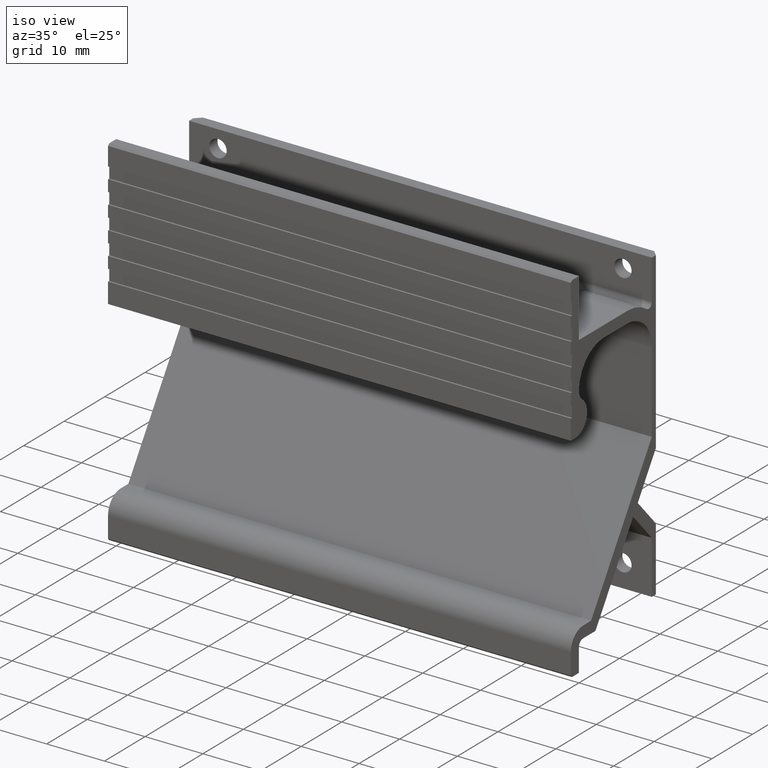
[diagram: clean part render]
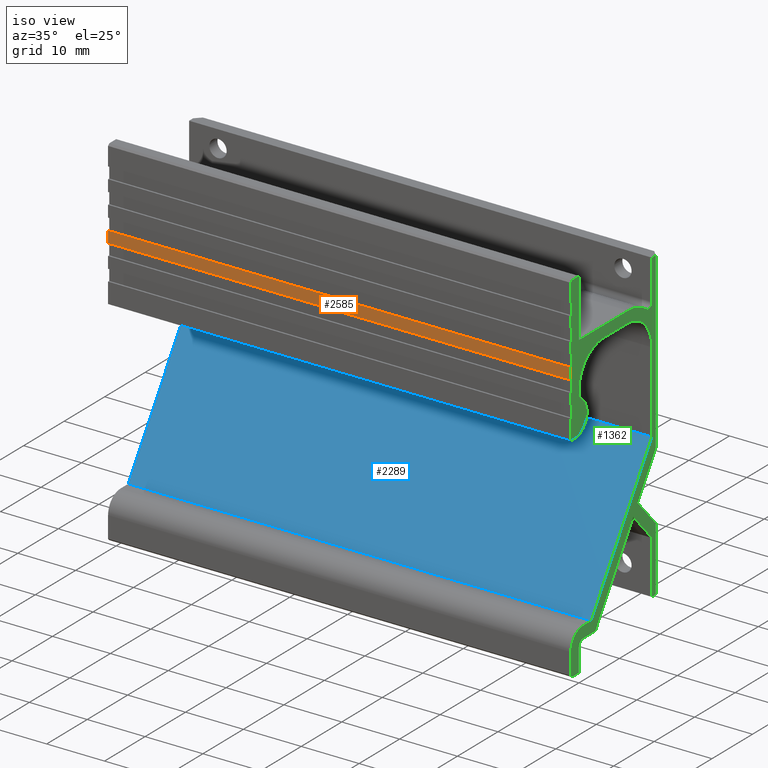
[diagram: same view with three faces highlighted in distinct colors, each labeled with its STEP entity id]
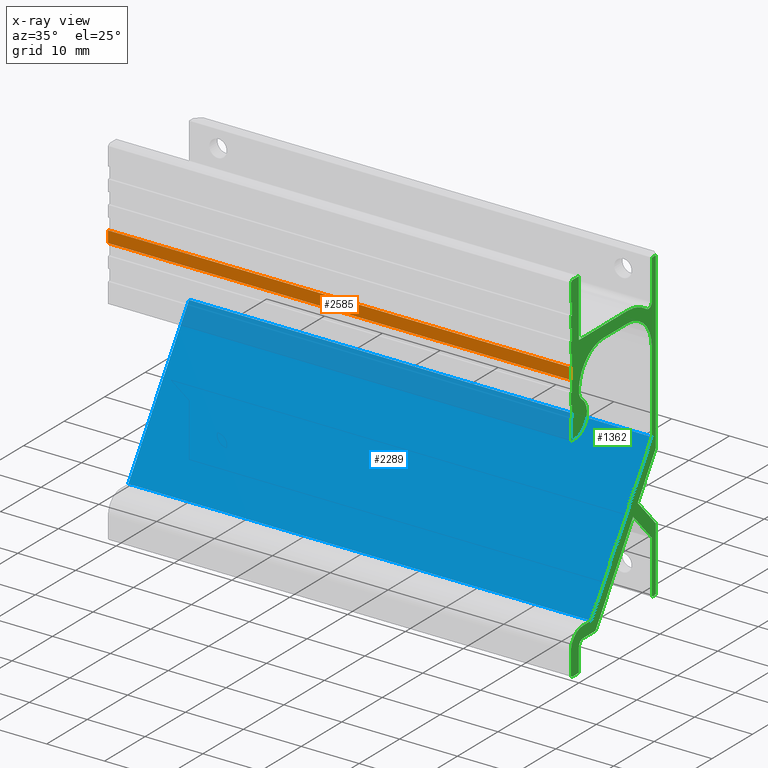
[diagram: x-ray of the same camera — body ghosted, the three highlighted faces saturated]
A machine part, iso view with three faces highlighted in distinct colors.
The next image is the same camera in x-ray (body ghosted, the three faces saturated) — at least one of them is partly hidden behind the body in this view.
Their STEP definitions:

[orange] entity #2585 — the highlighted face is a freeform B-spline surface patch.
#1109=CARTESIAN_POINT('',(40.0,-2.0,48.500000000000000));
#1110=VERTEX_POINT('',#1109);
#1116=CARTESIAN_POINT('',(40.0,-2.0,46.500000000000000));
#1117=VERTEX_POINT('',#1116);
#1118=CARTESIAN_POINT('',(40.0,-2.0,48.500000000000000));
#1119=CARTESIAN_POINT('',(40.0,-2.0,46.500000000000000));
#1120=QUASI_UNIFORM_CURVE('',1,(#1118,#1119),.UNSPECIFIED.,.F.,.U.);
#1121=EDGE_CURVE('',#1110,#1117,#1120,.T.);
#1615=CARTESIAN_POINT('',(-40.0,-2.0,46.500000000000000));
#1616=VERTEX_POINT('',#1615);
#1622=CARTESIAN_POINT('',(-40.0,-2.0,48.500000000000000));
#1623=VERTEX_POINT('',#1622);
#1624=CARTESIAN_POINT('',(-40.0,-2.0,48.500000000000000));
#1625=CARTESIAN_POINT('',(-40.0,-2.0,46.500000000000000));
#1626=QUASI_UNIFORM_CURVE('',1,(#1624,#1625),.UNSPECIFIED.,.F.,.U.);
#1627=EDGE_CURVE('',#1623,#1616,#1626,.T.);
#2560=CARTESIAN_POINT('',(-40.0,-2.0,46.500000000000000));
#2561=CARTESIAN_POINT('',(40.0,-2.0,46.500000000000000));
#2562=QUASI_UNIFORM_CURVE('',1,(#2560,#2561),.UNSPECIFIED.,.F.,.U.);
#2563=EDGE_CURVE('',#1616,#1117,#2562,.T.);
#2570=CARTESIAN_POINT('',(-43.995999844944478,-2.0,48.599899996123618));
#2571=CARTESIAN_POINT('',(-43.995999844944478,-2.0,46.400099950232210));
#2572=CARTESIAN_POINT('',(43.996001990711690,-2.0,48.599899996123618));
#2573=CARTESIAN_POINT('',(43.996001990711690,-2.0,46.400099950232217));
#2574=B_SPLINE_SURFACE_WITH_KNOTS('',1,1,((#2570,#2572),(#2571,#2573)),.UNSPECIFIED.,.F.,.F.,.U.,(2,2),(2,2),(0.0,2.199800045891408),(0.0,87.992001835656168),.UNSPECIFIED.);
#2575=ORIENTED_EDGE('',*,*,#1121,.F.);
#2576=CARTESIAN_POINT('',(-40.0,-2.0,48.500000000000000));
#2577=CARTESIAN_POINT('',(40.0,-2.0,48.500000000000000));
#2578=QUASI_UNIFORM_CURVE('',1,(#2576,#2577),.UNSPECIFIED.,.F.,.U.);
#2579=EDGE_CURVE('',#1623,#1110,#2578,.T.);
#2580=ORIENTED_EDGE('',*,*,#2579,.F.);
#2581=ORIENTED_EDGE('',*,*,#1627,.T.);
#2582=ORIENTED_EDGE('',*,*,#2563,.T.);
#2583=EDGE_LOOP('',(#2575,#2580,#2581,#2582));
#2584=FACE_OUTER_BOUND('',#2583,.T.);
#2585=ADVANCED_FACE('',(#2584),#2574,.T.);

[blue] entity #2289 — the highlighted face is a freeform B-spline surface patch.
#1255=CARTESIAN_POINT('',(40.0,18.0,30.0));
#1256=VERTEX_POINT('',#1255);
#1262=CARTESIAN_POINT('',(40.0,3.000000000000085,7.0));
#1263=VERTEX_POINT('',#1262);
#1264=CARTESIAN_POINT('',(40.0,18.0,30.0));
#1265=CARTESIAN_POINT('',(40.0,3.000000000000085,7.0));
#1266=QUASI_UNIFORM_CURVE('',1,(#1264,#1265),.UNSPECIFIED.,.F.,.U.);
#1267=EDGE_CURVE('',#1256,#1263,#1266,.T.);
#1469=CARTESIAN_POINT('',(-40.0,3.000000000000085,7.0));
#1470=VERTEX_POINT('',#1469);
#1476=CARTESIAN_POINT('',(-40.0,18.0,30.0));
#1477=VERTEX_POINT('',#1476);
#1478=CARTESIAN_POINT('',(-40.0,18.0,30.0));
#1479=CARTESIAN_POINT('',(-40.0,3.000000000000085,7.0));
#1480=QUASI_UNIFORM_CURVE('',1,(#1478,#1479),.UNSPECIFIED.,.F.,.U.);
#1481=EDGE_CURVE('',#1477,#1470,#1480,.T.);
#2264=CARTESIAN_POINT('',(-40.0,3.000000000000085,7.0));
#2265=CARTESIAN_POINT('',(40.0,3.000000000000085,7.0));
#2266=QUASI_UNIFORM_CURVE('',1,(#2264,#2265),.UNSPECIFIED.,.F.,.U.);
#2267=EDGE_CURVE('',#1470,#1263,#2266,.T.);
#2274=CARTESIAN_POINT('',(-43.995999844944478,18.749249970927089,31.148849955421539));
#2275=CARTESIAN_POINT('',(-43.995999844944478,2.250749626741623,5.851149427670408));
#2276=CARTESIAN_POINT('',(43.996001990711690,18.749249970927089,31.148849955421539));
#2277=CARTESIAN_POINT('',(43.996001990711690,2.250749626741623,5.851149427670408));
#2278=B_SPLINE_SURFACE_WITH_KNOTS('',1,1,((#2274,#2276),(#2275,#2277)),.UNSPECIFIED.,.F.,.F.,.U.,(2,2),(2,2),(0.0,30.202221203064980),(0.0,87.992001835656168),.UNSPECIFIED.);
#2279=ORIENTED_EDGE('',*,*,#1267,.F.);
#2280=CARTESIAN_POINT('',(-40.0,18.0,30.0));
#2281=CARTESIAN_POINT('',(40.0,18.0,30.0));
#2282=QUASI_UNIFORM_CURVE('',1,(#2280,#2281),.UNSPECIFIED.,.F.,.U.);
#2283=EDGE_CURVE('',#1477,#1256,#2282,.T.);
#2284=ORIENTED_EDGE('',*,*,#2283,.F.);
#2285=ORIENTED_EDGE('',*,*,#1481,.T.);
#2286=ORIENTED_EDGE('',*,*,#2267,.T.);
#2287=EDGE_LOOP('',(#2279,#2284,#2285,#2286));
#2288=FACE_OUTER_BOUND('',#2287,.T.);
#2289=ADVANCED_FACE('',(#2288),#2278,.T.);

[green] entity #1362 — the highlighted face is a freeform B-spline surface patch.
#867=CARTESIAN_POINT('',(40.0,19.0,27.872124824764800));
#868=VERTEX_POINT('',#867);
#881=CARTESIAN_POINT('',(40.0,19.0,58.0));
#882=VERTEX_POINT('',#881);
#888=CARTESIAN_POINT('',(40.0,19.0,27.872124824764800));
#889=CARTESIAN_POINT('',(40.0,19.0,58.0));
#890=QUASI_UNIFORM_CURVE('',1,(#888,#889),.UNSPECIFIED.,.F.,.U.);
#891=EDGE_CURVE('',#868,#882,#890,.T.);
#903=CARTESIAN_POINT('',(40.0,19.0,4.999999999999901));
#904=VERTEX_POINT('',#903);
#917=CARTESIAN_POINT('',(40.0,19.0,16.094526800492051));
#918=VERTEX_POINT('',#917);
#924=CARTESIAN_POINT('',(40.0,19.0,4.999999999999901));
#925=CARTESIAN_POINT('',(40.0,19.0,16.094526800492051));
#926=QUASI_UNIFORM_CURVE('',1,(#924,#925),.UNSPECIFIED.,.F.,.U.);
#927=EDGE_CURVE('',#904,#918,#926,.T.);
#932=CARTESIAN_POINT('',(40.0,-3.048949959297925,65.096899879831994));
#933=CARTESIAN_POINT('',(40.0,20.048950522561821,65.096899879831994));
#934=CARTESIAN_POINT('',(40.0,-3.048949959297925,-3.096901542801561));
#935=CARTESIAN_POINT('',(40.0,20.048950522561821,-3.096901542801561));
#936=B_SPLINE_SURFACE_WITH_KNOTS('',1,1,((#932,#934),(#933,#935)),.UNSPECIFIED.,.F.,.F.,.U.,(2,2),(2,2),(0.0,23.097900481859739),(0.0,68.193801422633555),.UNSPECIFIED.);
#937=CARTESIAN_POINT('',(40.0,18.0,4.999999999999901));
#938=VERTEX_POINT('',#937);
#939=CARTESIAN_POINT('',(40.0,18.0,4.999999999999901));
#940=CARTESIAN_POINT('',(40.0,19.0,4.999999999999901));
#941=QUASI_UNIFORM_CURVE('',1,(#939,#940),.UNSPECIFIED.,.F.,.U.);
#942=EDGE_CURVE('',#938,#904,#941,.T.);
#943=ORIENTED_EDGE('',*,*,#942,.T.);
#944=ORIENTED_EDGE('',*,*,#927,.T.);
#945=CARTESIAN_POINT('',(40.0,14.518179000000099,21.0));
#946=VERTEX_POINT('',#945);
#947=CARTESIAN_POINT('',(40.0,19.0,16.094526800492051));
#948=CARTESIAN_POINT('',(40.0,14.518179000000099,21.0));
#949=QUASI_UNIFORM_CURVE('',1,(#947,#948),.UNSPECIFIED.,.F.,.U.);
#950=EDGE_CURVE('',#918,#946,#949,.T.);
#951=ORIENTED_EDGE('',*,*,#950,.T.);
#952=CARTESIAN_POINT('',(40.0,14.518179000000099,21.0));
#953=CARTESIAN_POINT('',(40.0,19.0,27.872124824764800));
#954=QUASI_UNIFORM_CURVE('',1,(#952,#953),.UNSPECIFIED.,.F.,.U.);
#955=EDGE_CURVE('',#946,#868,#954,.T.);
#956=ORIENTED_EDGE('',*,*,#955,.T.);
#957=ORIENTED_EDGE('',*,*,#891,.T.);
#958=CARTESIAN_POINT('',(40.0,18.0,58.0));
#959=VERTEX_POINT('',#958);
#960=CARTESIAN_POINT('',(40.0,19.0,58.0));
#961=CARTESIAN_POINT('',(40.0,18.0,58.0));
#962=QUASI_UNIFORM_CURVE('',1,(#960,#961),.UNSPECIFIED.,.F.,.U.);
#963=EDGE_CURVE('',#882,#959,#962,.T.);
#964=ORIENTED_EDGE('',*,*,#963,.T.);
#965=CARTESIAN_POINT('',(40.0,18.0,51.099294999999898));
#966=VERTEX_POINT('',#965);
#967=CARTESIAN_POINT('',(40.0,18.0,58.0));
#968=CARTESIAN_POINT('',(40.0,18.0,51.099294999999898));
#969=QUASI_UNIFORM_CURVE('',1,(#967,#968),.UNSPECIFIED.,.F.,.U.);
#970=EDGE_CURVE('',#959,#966,#969,.T.);
#971=ORIENTED_EDGE('',*,*,#970,.T.);
#972=CARTESIAN_POINT('',(40.0,16.727272722990399,50.453904481343798));
#973=VERTEX_POINT('',#972);
#974=CARTESIAN_POINT('',(40.0,16.727272722990438,50.453904481343848));
#975=CARTESIAN_POINT('',(40.0,17.123627222252377,50.163587878061925));
#976=CARTESIAN_POINT('',(40.0,17.561813611126190,50.385788930786873));
#977=CARTESIAN_POINT('',(40.0,18.000000000000004,50.607989983511835));
#978=CARTESIAN_POINT('',(40.0,18.0,51.099294999999898));
#986=(BOUNDED_CURVE()B_SPLINE_CURVE(2,(#974,#975,#976,#977,#978),.UNSPECIFIED.,.F.,.U.)B_SPLINE_CURVE_WITH_KNOTS((3,2,3),(0.0,0.500000000000000,1.0),.UNSPECIFIED.)CURVE()GEOMETRIC_REPRESENTATION_ITEM()RATIONAL_B_SPLINE_CURVE((1.0,0.852134676535270,1.0,0.852134676535270,1.0))REPRESENTATION_ITEM(''));
#987=EDGE_CURVE('',#973,#966,#986,.T.);
#988=ORIENTED_EDGE('',*,*,#987,.F.);
#989=CARTESIAN_POINT('',(40.0,12.0,52.0));
#990=VERTEX_POINT('',#989);
#991=CARTESIAN_POINT('',(40.0,16.727272722990399,50.453904481343798));
#992=CARTESIAN_POINT('',(39.999999999999993,14.616468331732822,52.0));
#993=CARTESIAN_POINT('',(40.0,12.0,52.0));
#1001=(BOUNDED_CURVE()B_SPLINE_CURVE(2,(#991,#992,#993),.UNSPECIFIED.,.F.,.U.)CURVE()GEOMETRIC_REPRESENTATION_ITEM()QUASI_UNIFORM_CURVE()RATIONAL_B_SPLINE_CURVE((1.0,0.950457290031124,1.0))REPRESENTATION_ITEM(''));
#1002=EDGE_CURVE('',#973,#990,#1001,.T.);
#1003=ORIENTED_EDGE('',*,*,#1002,.T.);
#1004=CARTESIAN_POINT('',(40.0,0.0,52.0));
#1005=VERTEX_POINT('',#1004);
#1006=CARTESIAN_POINT('',(40.0,12.0,52.0));
#1007=CARTESIAN_POINT('',(40.0,0.0,52.0));
#1008=QUASI_UNIFORM_CURVE('',1,(#1006,#1007),.UNSPECIFIED.,.F.,.U.);
#1009=EDGE_CURVE('',#990,#1005,#1008,.T.);
#1010=ORIENTED_EDGE('',*,*,#1009,.T.);
#1011=CARTESIAN_POINT('',(40.0,0.0,62.0));
#1012=VERTEX_POINT('',#1011);
#1013=CARTESIAN_POINT('',(40.0,0.0,52.0));
#1014=CARTESIAN_POINT('',(40.0,0.0,62.0));
#1015=QUASI_UNIFORM_CURVE('',1,(#1013,#1014),.UNSPECIFIED.,.F.,.U.);
#1016=EDGE_CURVE('',#1005,#1012,#1015,.T.);
#1017=ORIENTED_EDGE('',*,*,#1016,.T.);
#1018=CARTESIAN_POINT('',(40.0,-1.699999999999905,62.0));
#1019=VERTEX_POINT('',#1018);
#1020=CARTESIAN_POINT('',(40.0,0.0,62.0));
#1021=CARTESIAN_POINT('',(40.0,-1.699999999999905,62.0));
#1022=QUASI_UNIFORM_CURVE('',1,(#1020,#1021),.UNSPECIFIED.,.F.,.U.);
#1023=EDGE_CURVE('',#1012,#1019,#1022,.T.);
#1024=ORIENTED_EDGE('',*,*,#1023,.T.);
#1025=CARTESIAN_POINT('',(40.0,-2.0,61.700000000000003));
#1026=VERTEX_POINT('',#1025);
#1027=CARTESIAN_POINT('',(40.0,-1.699999999999905,62.0));
#1028=CARTESIAN_POINT('',(40.0,-2.0,61.700000000000003));
#1029=QUASI_UNIFORM_CURVE('',1,(#1027,#1028),.UNSPECIFIED.,.F.,.U.);
#1030=EDGE_CURVE('',#1019,#1026,#1029,.T.);
#1031=ORIENTED_EDGE('',*,*,#1030,.T.);
#1032=CARTESIAN_POINT('',(40.0,-2.0,58.500000000000000));
#1033=VERTEX_POINT('',#1032);
#1034=CARTESIAN_POINT('',(40.0,-2.0,61.700000000000003));
#1035=CARTESIAN_POINT('',(40.0,-2.0,58.500000000000000));
#1036=QUASI_UNIFORM_CURVE('',1,(#1034,#1035),.UNSPECIFIED.,.F.,.U.);
#1037=EDGE_CURVE('',#1026,#1033,#1036,.T.);
#1038=ORIENTED_EDGE('',*,*,#1037,.T.);
#1039=CARTESIAN_POINT('',(40.0,-1.699999999999905,58.500000000000000));
#1040=VERTEX_POINT('',#1039);
#1041=CARTESIAN_POINT('',(40.0,-2.0,58.500000000000000));
#1042=CARTESIAN_POINT('',(40.0,-1.699999999999905,58.500000000000000));
#1043=QUASI_UNIFORM_CURVE('',1,(#1041,#1042),.UNSPECIFIED.,.F.,.U.);
#1044=EDGE_CURVE('',#1033,#1040,#1043,.T.);
#1045=ORIENTED_EDGE('',*,*,#1044,.T.);
#1046=CARTESIAN_POINT('',(40.0,-1.699999999999905,56.500000000000000));
#1047=VERTEX_POINT('',#1046);
#1048=CARTESIAN_POINT('',(40.0,-1.699999999999905,58.500000000000000));
#1049=CARTESIAN_POINT('',(40.0,-1.699999999999905,56.500000000000000));
#1050=QUASI_UNIFORM_CURVE('',1,(#1048,#1049),.UNSPECIFIED.,.F.,.U.);
#1051=EDGE_CURVE('',#1040,#1047,#1050,.T.);
#1052=ORIENTED_EDGE('',*,*,#1051,.T.);
#1053=CARTESIAN_POINT('',(40.0,-2.0,56.500000000000000));
#1054=VERTEX_POINT('',#1053);
#1055=CARTESIAN_POINT('',(40.0,-1.699999999999905,56.500000000000000));
#1056=CARTESIAN_POINT('',(40.0,-2.0,56.500000000000000));
#1057=QUASI_UNIFORM_CURVE('',1,(#1055,#1056),.UNSPECIFIED.,.F.,.U.);
#1058=EDGE_CURVE('',#1047,#1054,#1057,.T.);
#1059=ORIENTED_EDGE('',*,*,#1058,.T.);
#1060=CARTESIAN_POINT('',(40.0,-2.0,54.500000000000000));
#1061=VERTEX_POINT('',#1060);
#1062=CARTESIAN_POINT('',(40.0,-2.0,56.500000000000000));
#1063=CARTESIAN_POINT('',(40.0,-2.0,54.500000000000000));
#1064=QUASI_UNIFORM_CURVE('',1,(#1062,#1063),.UNSPECIFIED.,.F.,.U.);
#1065=EDGE_CURVE('',#1054,#1061,#1064,.T.);
#1066=ORIENTED_EDGE('',*,*,#1065,.T.);
#1067=CARTESIAN_POINT('',(40.0,-1.699999999999905,54.500000000000000));
#1068=VERTEX_POINT('',#1067);
#1069=CARTESIAN_POINT('',(40.0,-2.0,54.500000000000000));
#1070=CARTESIAN_POINT('',(40.0,-1.699999999999905,54.500000000000000));
#1071=QUASI_UNIFORM_CURVE('',1,(#1069,#1070),.UNSPECIFIED.,.F.,.U.);
#1072=EDGE_CURVE('',#1061,#1068,#1071,.T.);
#1073=ORIENTED_EDGE('',*,*,#1072,.T.);
#1074=CARTESIAN_POINT('',(40.0,-1.699999999999905,52.500000000000000));
#1075=VERTEX_POINT('',#1074);
#1076=CARTESIAN_POINT('',(40.0,-1.699999999999905,54.500000000000000));
#1077=CARTESIAN_POINT('',(40.0,-1.699999999999905,52.500000000000000));
#1078=QUASI_UNIFORM_CURVE('',1,(#1076,#1077),.UNSPECIFIED.,.F.,.U.);
#1079=EDGE_CURVE('',#1068,#1075,#1078,.T.);
#1080=ORIENTED_EDGE('',*,*,#1079,.T.);
#1081=CARTESIAN_POINT('',(40.0,-2.0,52.500000000000000));
#1082=VERTEX_POINT('',#1081);
#1083=CARTESIAN_POINT('',(40.0,-1.699999999999905,52.500000000000000));
#1084=CARTESIAN_POINT('',(40.0,-2.0,52.500000000000000));
#1085=QUASI_UNIFORM_CURVE('',1,(#1083,#1084),.UNSPECIFIED.,.F.,.U.);
#1086=EDGE_CURVE('',#1075,#1082,#1085,.T.);
#1087=ORIENTED_EDGE('',*,*,#1086,.T.);
#1088=CARTESIAN_POINT('',(40.0,-2.0,50.500000000000000));
#1089=VERTEX_POINT('',#1088);
#1090=CARTESIAN_POINT('',(40.0,-2.0,52.500000000000000));
#1091=CARTESIAN_POINT('',(40.0,-2.0,50.500000000000000));
#1092=QUASI_UNIFORM_CURVE('',1,(#1090,#1091),.UNSPECIFIED.,.F.,.U.);
#1093=EDGE_CURVE('',#1082,#1089,#1092,.T.);
#1094=ORIENTED_EDGE('',*,*,#1093,.T.);
#1095=CARTESIAN_POINT('',(40.0,-1.699999999999905,50.500000000000000));
#1096=VERTEX_POINT('',#1095);
#1097=CARTESIAN_POINT('',(40.0,-2.0,50.500000000000000));
#1098=CARTESIAN_POINT('',(40.0,-1.699999999999905,50.500000000000000));
#1099=QUASI_UNIFORM_CURVE('',1,(#1097,#1098),.UNSPECIFIED.,.F.,.U.);
#1100=EDGE_CURVE('',#1089,#1096,#1099,.T.);
#1101=ORIENTED_EDGE('',*,*,#1100,.T.);
#1102=CARTESIAN_POINT('',(40.0,-1.699999999999905,48.500000000000000));
#1103=VERTEX_POINT('',#1102);
#1104=CARTESIAN_POINT('',(40.0,-1.699999999999905,50.500000000000000));
#1105=CARTESIAN_POINT('',(40.0,-1.699999999999905,48.500000000000000));
#1106=QUASI_UNIFORM_CURVE('',1,(#1104,#1105),.UNSPECIFIED.,.F.,.U.);
#1107=EDGE_CURVE('',#1096,#1103,#1106,.T.);
#1108=ORIENTED_EDGE('',*,*,#1107,.T.);
#1109=CARTESIAN_POINT('',(40.0,-2.0,48.500000000000000));
#1110=VERTEX_POINT('',#1109);
#1111=CARTESIAN_POINT('',(40.0,-1.699999999999905,48.500000000000000));
#1112=CARTESIAN_POINT('',(40.0,-2.0,48.500000000000000));
#1113=QUASI_UNIFORM_CURVE('',1,(#1111,#1112),.UNSPECIFIED.,.F.,.U.);
#1114=EDGE_CURVE('',#1103,#1110,#1113,.T.);
#1115=ORIENTED_EDGE('',*,*,#1114,.T.);
#1116=CARTESIAN_POINT('',(40.0,-2.0,46.500000000000000));
#1117=VERTEX_POINT('',#1116);
#1118=CARTESIAN_POINT('',(40.0,-2.0,48.500000000000000));
#1119=CARTESIAN_POINT('',(40.0,-2.0,46.500000000000000));
#1120=QUASI_UNIFORM_CURVE('',1,(#1118,#1119),.UNSPECIFIED.,.F.,.U.);
#1121=EDGE_CURVE('',#1110,#1117,#1120,.T.);
#1122=ORIENTED_EDGE('',*,*,#1121,.T.);
#1123=CARTESIAN_POINT('',(40.0,-1.699999999999905,46.500000000000000));
#1124=VERTEX_POINT('',#1123);
#1125=CARTESIAN_POINT('',(40.0,-2.0,46.500000000000000));
#1126=CARTESIAN_POINT('',(40.0,-1.699999999999905,46.500000000000000));
#1127=QUASI_UNIFORM_CURVE('',1,(#1125,#1126),.UNSPECIFIED.,.F.,.U.);
#1128=EDGE_CURVE('',#1117,#1124,#1127,.T.);
#1129=ORIENTED_EDGE('',*,*,#1128,.T.);
#1130=CARTESIAN_POINT('',(40.0,-1.699999999999905,44.500000000000000));
#1131=VERTEX_POINT('',#1130);
#1132=CARTESIAN_POINT('',(40.0,-1.699999999999905,46.500000000000000));
#1133=CARTESIAN_POINT('',(40.0,-1.699999999999905,44.500000000000000));
#1134=QUASI_UNIFORM_CURVE('',1,(#1132,#1133),.UNSPECIFIED.,.F.,.U.);
#1135=EDGE_CURVE('',#1124,#1131,#1134,.T.);
#1136=ORIENTED_EDGE('',*,*,#1135,.T.);
#1137=CARTESIAN_POINT('',(40.0,-2.0,44.500000000000000));
#1138=VERTEX_POINT('',#1137);
#1139=CARTESIAN_POINT('',(40.0,-1.699999999999905,44.500000000000000));
#1140=CARTESIAN_POINT('',(40.0,-2.0,44.500000000000000));
#1141=QUASI_UNIFORM_CURVE('',1,(#1139,#1140),.UNSPECIFIED.,.F.,.U.);
#1142=EDGE_CURVE('',#1131,#1138,#1141,.T.);
#1143=ORIENTED_EDGE('',*,*,#1142,.T.);
#1144=CARTESIAN_POINT('',(40.0,-2.0,42.500000000000000));
#1145=VERTEX_POINT('',#1144);
#1146=CARTESIAN_POINT('',(40.0,-2.0,44.500000000000000));
#1147=CARTESIAN_POINT('',(40.0,-2.0,42.500000000000000));
#1148=QUASI_UNIFORM_CURVE('',1,(#1146,#1147),.UNSPECIFIED.,.F.,.U.);
#1149=EDGE_CURVE('',#1138,#1145,#1148,.T.);
#1150=ORIENTED_EDGE('',*,*,#1149,.T.);
#1151=CARTESIAN_POINT('',(40.0,-1.699999999999905,42.500000000000000));
#1152=VERTEX_POINT('',#1151);
#1153=CARTESIAN_POINT('',(40.0,-2.0,42.500000000000000));
#1154=CARTESIAN_POINT('',(40.0,-1.699999999999905,42.500000000000000));
#1155=QUASI_UNIFORM_CURVE('',1,(#1153,#1154),.UNSPECIFIED.,.F.,.U.);
#1156=EDGE_CURVE('',#1145,#1152,#1155,.T.);
#1157=ORIENTED_EDGE('',*,*,#1156,.T.);
#1158=CARTESIAN_POINT('',(40.0,-1.699999999999905,40.500000000000000));
#1159=VERTEX_POINT('',#1158);
#1160=CARTESIAN_POINT('',(40.0,-1.699999999999905,42.500000000000000));
#1161=CARTESIAN_POINT('',(40.0,-1.699999999999905,40.500000000000000));
#1162=QUASI_UNIFORM_CURVE('',1,(#1160,#1161),.UNSPECIFIED.,.F.,.U.);
#1163=EDGE_CURVE('',#1152,#1159,#1162,.T.);
#1164=ORIENTED_EDGE('',*,*,#1163,.T.);
#1165=CARTESIAN_POINT('',(40.0,-2.0,40.500000000000000));
#1166=VERTEX_POINT('',#1165);
#1167=CARTESIAN_POINT('',(40.0,-1.699999999999905,40.500000000000000));
#1168=CARTESIAN_POINT('',(40.0,-2.0,40.500000000000000));
#1169=QUASI_UNIFORM_CURVE('',1,(#1167,#1168),.UNSPECIFIED.,.F.,.U.);
#1170=EDGE_CURVE('',#1159,#1166,#1169,.T.);
#1171=ORIENTED_EDGE('',*,*,#1170,.T.);
#1172=CARTESIAN_POINT('',(40.0,-2.0,37.0));
#1173=VERTEX_POINT('',#1172);
#1174=CARTESIAN_POINT('',(40.0,-2.0,40.500000000000000));
#1175=CARTESIAN_POINT('',(40.0,-2.0,37.0));
#1176=QUASI_UNIFORM_CURVE('',1,(#1174,#1175),.UNSPECIFIED.,.F.,.U.);
#1177=EDGE_CURVE('',#1166,#1173,#1176,.T.);
#1178=ORIENTED_EDGE('',*,*,#1177,.T.);
#1179=CARTESIAN_POINT('',(40.0,-1.0,37.0));
#1180=VERTEX_POINT('',#1179);
#1181=CARTESIAN_POINT('',(40.0,-2.0,37.0));
#1182=CARTESIAN_POINT('',(40.0,-1.0,37.0));
#1183=QUASI_UNIFORM_CURVE('',1,(#1181,#1182),.UNSPECIFIED.,.F.,.U.);
#1184=EDGE_CURVE('',#1173,#1180,#1183,.T.);
#1185=ORIENTED_EDGE('',*,*,#1184,.T.);
#1186=CARTESIAN_POINT('',(40.0,0.800000014834853,42.399999988873851));
#1187=VERTEX_POINT('',#1186);
#1188=CARTESIAN_POINT('',(40.0,-1.0,37.0));
#1189=CARTESIAN_POINT('',(40.0,1.162277653124168,37.000000000000007));
#1190=CARTESIAN_POINT('',(40.0,1.846049891219545,39.051316693153503));
#1191=CARTESIAN_POINT('',(40.0,2.529822129314922,41.102633386306991));
#1192=CARTESIAN_POINT('',(40.0,0.800000014834858,42.399999988873859));
#1200=(BOUNDED_CURVE()B_SPLINE_CURVE(2,(#1188,#1189,#1190,#1191,#1192),.UNSPECIFIED.,.F.,.U.)B_SPLINE_CURVE_WITH_KNOTS((3,2,3),(0.0,0.500000000000000,1.0),.UNSPECIFIED.)CURVE()GEOMETRIC_REPRESENTATION_ITEM()RATIONAL_B_SPLINE_CURVE((1.0,0.811242186079112,1.0,0.811242186079112,1.0))REPRESENTATION_ITEM(''));
#1201=EDGE_CURVE('',#1180,#1187,#1200,.T.);
#1202=ORIENTED_EDGE('',*,*,#1201,.T.);
#1203=CARTESIAN_POINT('',(40.0,-4.440892E-016,44.0));
#1204=VERTEX_POINT('',#1203);
#1205=CARTESIAN_POINT('',(40.0,0.0,44.0));
#1206=CARTESIAN_POINT('',(40.0,0.0,42.999999988410266));
#1207=CARTESIAN_POINT('',(40.0,0.800000014834856,42.399999988873859));
#1215=(BOUNDED_CURVE()B_SPLINE_CURVE(2,(#1205,#1206,#1207),.UNSPECIFIED.,.F.,.U.)CURVE()GEOMETRIC_REPRESENTATION_ITEM()QUASI_UNIFORM_CURVE()RATIONAL_B_SPLINE_CURVE((1.0,0.894427188926682,1.0))REPRESENTATION_ITEM(''));
#1216=EDGE_CURVE('',#1204,#1187,#1215,.T.);
#1217=ORIENTED_EDGE('',*,*,#1216,.F.);
#1218=CARTESIAN_POINT('',(40.0,6.000000000000091,50.0));
#1219=VERTEX_POINT('',#1218);
#1220=CARTESIAN_POINT('',(40.0,6.000000000000091,49.999999999999993));
#1221=CARTESIAN_POINT('',(39.999999999999993,9.020562E-014,49.999999999999986));
#1222=CARTESIAN_POINT('',(40.0,9.020562E-014,44.0));
#1230=(BOUNDED_CURVE()B_SPLINE_CURVE(2,(#1220,#1221,#1222),.UNSPECIFIED.,.F.,.U.)CURVE()GEOMETRIC_REPRESENTATION_ITEM()QUASI_UNIFORM_CURVE()RATIONAL_B_SPLINE_CURVE((1.0,0.707106781186548,1.0))REPRESENTATION_ITEM(''));
#1231=EDGE_CURVE('',#1219,#1204,#1230,.T.);
#1232=ORIENTED_EDGE('',*,*,#1231,.F.);
#1233=CARTESIAN_POINT('',(40.0,12.0,50.0));
#1234=VERTEX_POINT('',#1233);
#1235=CARTESIAN_POINT('',(40.0,6.000000000000091,50.0));
#1236=CARTESIAN_POINT('',(40.0,12.0,50.0));
#1237=QUASI_UNIFORM_CURVE('',1,(#1235,#1236),.UNSPECIFIED.,.F.,.U.);
#1238=EDGE_CURVE('',#1219,#1234,#1237,.T.);
#1239=ORIENTED_EDGE('',*,*,#1238,.T.);
#1240=CARTESIAN_POINT('',(40.0,18.0,44.0));
#1241=VERTEX_POINT('',#1240);
#1242=CARTESIAN_POINT('',(40.0,18.0,44.0));
#1243=CARTESIAN_POINT('',(39.999999999999993,18.000000000000007,49.999999999999986));
#1244=CARTESIAN_POINT('',(40.0,12.0,49.999999999999993));
#1252=(BOUNDED_CURVE()B_SPLINE_CURVE(2,(#1242,#1243,#1244),.UNSPECIFIED.,.F.,.U.)CURVE()GEOMETRIC_REPRESENTATION_ITEM()QUASI_UNIFORM_CURVE()RATIONAL_B_SPLINE_CURVE((1.0,0.707106781186548,1.0))REPRESENTATION_ITEM(''));
#1253=EDGE_CURVE('',#1241,#1234,#1252,.T.);
#1254=ORIENTED_EDGE('',*,*,#1253,.F.);
#1255=CARTESIAN_POINT('',(40.0,18.0,30.0));
#1256=VERTEX_POINT('',#1255);
#1257=CARTESIAN_POINT('',(40.0,18.0,44.0));
#1258=CARTESIAN_POINT('',(40.0,18.0,30.0));
#1259=QUASI_UNIFORM_CURVE('',1,(#1257,#1258),.UNSPECIFIED.,.F.,.U.);
#1260=EDGE_CURVE('',#1241,#1256,#1259,.T.);
#1261=ORIENTED_EDGE('',*,*,#1260,.T.);
#1262=CARTESIAN_POINT('',(40.0,3.000000000000085,7.0));
#1263=VERTEX_POINT('',#1262);
#1264=CARTESIAN_POINT('',(40.0,18.0,30.0));
#1265=CARTESIAN_POINT('',(40.0,3.000000000000085,7.0));
#1266=QUASI_UNIFORM_CURVE('',1,(#1264,#1265),.UNSPECIFIED.,.F.,.U.);
#1267=EDGE_CURVE('',#1256,#1263,#1266,.T.);
#1268=ORIENTED_EDGE('',*,*,#1267,.T.);
#1269=CARTESIAN_POINT('',(40.0,1.0,7.0));
#1270=VERTEX_POINT('',#1269);
#1271=CARTESIAN_POINT('',(40.0,3.000000000000085,7.0));
#1272=CARTESIAN_POINT('',(40.0,1.0,7.0));
#1273=QUASI_UNIFORM_CURVE('',1,(#1271,#1272),.UNSPECIFIED.,.F.,.U.);
#1274=EDGE_CURVE('',#1263,#1270,#1273,.T.);
#1275=ORIENTED_EDGE('',*,*,#1274,.T.);
#1276=CARTESIAN_POINT('',(40.0,-2.0,3.999999999999901));
#1277=VERTEX_POINT('',#1276);
#1278=CARTESIAN_POINT('',(40.0,1.0,7.0));
#1279=CARTESIAN_POINT('',(39.999999999999993,-2.000000000000000,6.999999999999899));
#1280=CARTESIAN_POINT('',(40.0,-2.0,3.999999999999901));
#1288=(BOUNDED_CURVE()B_SPLINE_CURVE(2,(#1278,#1279,#1280),.UNSPECIFIED.,.F.,.U.)CURVE()GEOMETRIC_REPRESENTATION_ITEM()QUASI_UNIFORM_CURVE()RATIONAL_B_SPLINE_CURVE((1.0,0.707106781186548,1.0))REPRESENTATION_ITEM(''));
#1289=EDGE_CURVE('',#1270,#1277,#1288,.T.);
#1290=ORIENTED_EDGE('',*,*,#1289,.T.);
#1291=CARTESIAN_POINT('',(40.0,-2.0,0.300000000000000));
#1292=VERTEX_POINT('',#1291);
#1293=CARTESIAN_POINT('',(40.0,-2.0,3.999999999999901));
#1294=CARTESIAN_POINT('',(40.0,-2.0,0.300000000000000));
#1295=QUASI_UNIFORM_CURVE('',1,(#1293,#1294),.UNSPECIFIED.,.F.,.U.);
#1296=EDGE_CURVE('',#1277,#1292,#1295,.T.);
#1297=ORIENTED_EDGE('',*,*,#1296,.T.);
#1298=CARTESIAN_POINT('',(40.0,-1.699999999999905,-1.040915E-016));
#1299=VERTEX_POINT('',#1298);
#1300=CARTESIAN_POINT('',(40.0,-2.0,0.300000000000000));
#1301=CARTESIAN_POINT('',(40.0,-1.699999999999905,-1.040915E-016));
#1302=QUASI_UNIFORM_CURVE('',1,(#1300,#1301),.UNSPECIFIED.,.F.,.U.);
#1303=EDGE_CURVE('',#1292,#1299,#1302,.T.);
#1304=ORIENTED_EDGE('',*,*,#1303,.T.);
#1305=CARTESIAN_POINT('',(40.0,0.0,0.0));
#1306=VERTEX_POINT('',#1305);
#1307=CARTESIAN_POINT('',(40.0,-1.699999999999905,-1.040915E-016));
#1308=CARTESIAN_POINT('',(40.0,0.0,0.0));
#1309=QUASI_UNIFORM_CURVE('',1,(#1307,#1308),.UNSPECIFIED.,.F.,.U.);
#1310=EDGE_CURVE('',#1299,#1306,#1309,.T.);
#1311=ORIENTED_EDGE('',*,*,#1310,.T.);
#1312=CARTESIAN_POINT('',(40.0,0.0,3.999999999999901));
#1313=VERTEX_POINT('',#1312);
#1314=CARTESIAN_POINT('',(40.0,0.0,0.0));
#1315=CARTESIAN_POINT('',(40.0,0.0,3.999999999999901));
#1316=QUASI_UNIFORM_CURVE('',1,(#1314,#1315),.UNSPECIFIED.,.F.,.U.);
#1317=EDGE_CURVE('',#1306,#1313,#1316,.T.);
#1318=ORIENTED_EDGE('',*,*,#1317,.T.);
#1319=CARTESIAN_POINT('',(40.0,1.0,4.999999999999901));
#1320=VERTEX_POINT('',#1319);
#1321=CARTESIAN_POINT('',(40.0,1.0,4.999999999999901));
#1322=CARTESIAN_POINT('',(39.999999999999993,0.0,4.999999999999901));
#1323=CARTESIAN_POINT('',(40.0,0.0,3.999999999999901));
#1331=(BOUNDED_CURVE()B_SPLINE_CURVE(2,(#1321,#1322,#1323),.UNSPECIFIED.,.F.,.U.)CURVE()GEOMETRIC_REPRESENTATION_ITEM()QUASI_UNIFORM_CURVE()RATIONAL_B_SPLINE_CURVE((1.0,0.707106781186548,1.0))REPRESENTATION_ITEM(''));
#1332=EDGE_CURVE('',#1320,#1313,#1331,.T.);
#1333=ORIENTED_EDGE('',*,*,#1332,.F.);
#1334=CARTESIAN_POINT('',(40.0,4.083396000000001,4.999999999999901));
#1335=VERTEX_POINT('',#1334);
#1336=CARTESIAN_POINT('',(40.0,1.0,4.999999999999901));
#1337=CARTESIAN_POINT('',(40.0,4.083396000000001,4.999999999999901));
#1338=QUASI_UNIFORM_CURVE('',1,(#1336,#1337),.UNSPECIFIED.,.F.,.U.);
#1339=EDGE_CURVE('',#1320,#1335,#1338,.T.);
#1340=ORIENTED_EDGE('',*,*,#1339,.T.);
#1341=CARTESIAN_POINT('',(40.0,13.389837999999999,19.269875999999901));
#1342=VERTEX_POINT('',#1341);
#1343=CARTESIAN_POINT('',(40.0,4.083396000000001,4.999999999999901));
#1344=CARTESIAN_POINT('',(40.0,13.389837999999999,19.269875999999901));
#1345=QUASI_UNIFORM_CURVE('',1,(#1343,#1344),.UNSPECIFIED.,.F.,.U.);
#1346=EDGE_CURVE('',#1335,#1342,#1345,.T.);
#1347=ORIENTED_EDGE('',*,*,#1346,.T.);
#1348=CARTESIAN_POINT('',(40.0,18.0,14.223929999999999));
#1349=VERTEX_POINT('',#1348);
#1350=CARTESIAN_POINT('',(40.0,13.389837999999999,19.269875999999901));
#1351=CARTESIAN_POINT('',(40.0,18.0,14.223929999999999));
#1352=QUASI_UNIFORM_CURVE('',1,(#1350,#1351),.UNSPECIFIED.,.F.,.U.);
#1353=EDGE_CURVE('',#1342,#1349,#1352,.T.);
#1354=ORIENTED_EDGE('',*,*,#1353,.T.);
#1355=CARTESIAN_POINT('',(40.0,18.0,14.223929999999999));
#1356=CARTESIAN_POINT('',(40.0,18.0,4.999999999999901));
#1357=QUASI_UNIFORM_CURVE('',1,(#1355,#1356),.UNSPECIFIED.,.F.,.U.);
#1358=EDGE_CURVE('',#1349,#938,#1357,.T.);
#1359=ORIENTED_EDGE('',*,*,#1358,.T.);
#1360=EDGE_LOOP('',(#943,#944,#951,#956,#957,#964,#971,#988,#1003,#1010,#1017,#1024,#1031,#1038,#1045,#1052,#1059,#1066,#1073,#1080,#1087,#1094,#1101,#1108,#1115,#1122,#1129,#1136,#1143,#1150,#1157,#1164,#1171,#1178,#1185,#1202,#1217,#1232,#1239,#1254,#1261,#1268,#1275,#1290,#1297,#1304,#1311,#1318,#1333,#1340,#1347,#1354,#1359));
#1361=FACE_OUTER_BOUND('',#1360,.T.);
#1362=ADVANCED_FACE('',(#1361),#936,.F.);